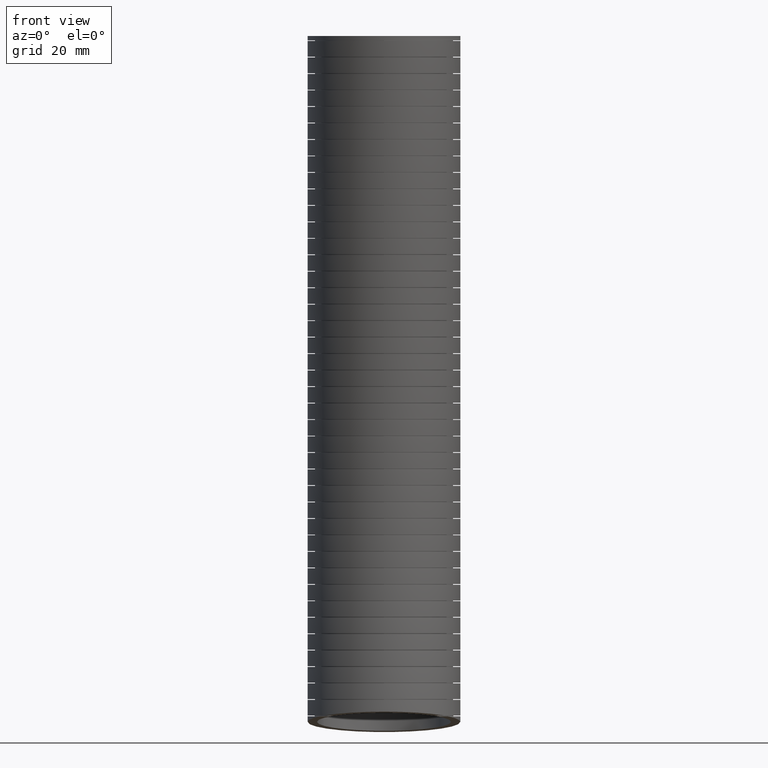
[diagram: clean part render]
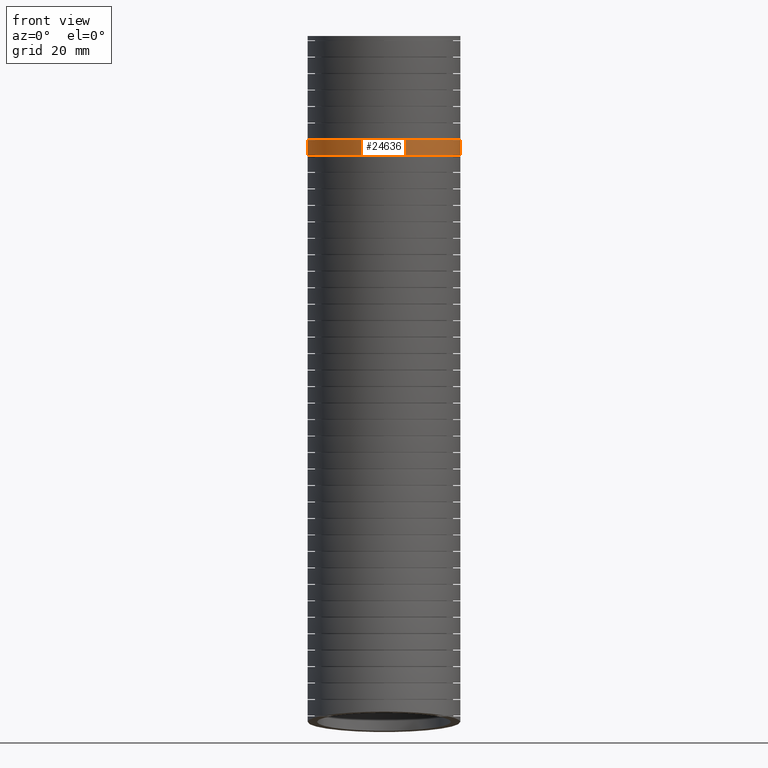
[diagram: same view with one face highlighted and labeled with its STEP entity id]
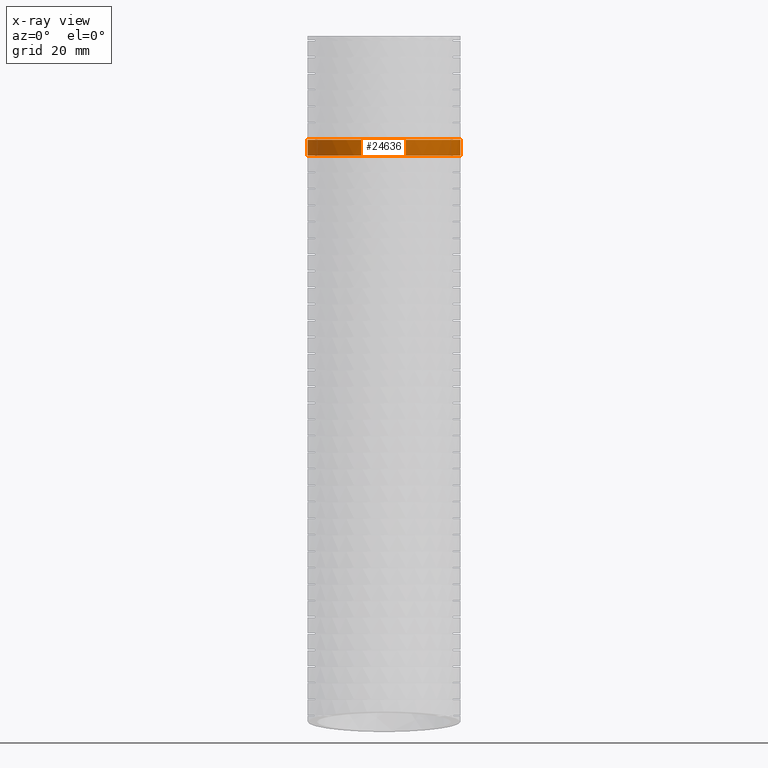
[diagram: x-ray of the same camera — body ghosted, the highlighted face saturated]
A machine part, front view. The second image highlights one B-rep face of the part: STEP entity #24636.
The next image is the same camera in x-ray: the body ghosted, the highlighted face saturated — about 0% of this face is hidden behind the body in this view.
In plain terms, the highlighted face is a freeform B-spline surface patch.
Its self-contained STEP definition (entity closure, byte-faithful):
#20815 = FACE_OUTER_BOUND ( 'NONE', #24637, .T. ) ;
#20819 = CARTESIAN_POINT ( 'NONE',  ( 1.064999999999999700, -2.140788144512650400, -9.284564527458751800 ) ) ;
#20820 = CARTESIAN_POINT ( 'NONE',  ( 1.064999999999999700, -2.124537751342253000, -9.104349485882636400 ) ) ;
#20821 = CARTESIAN_POINT ( 'NONE',  ( 1.064999999999999700, -2.004921696294905200, -7.777820822391721100 ) ) ;
#20822 = CARTESIAN_POINT ( 'NONE',  ( 1.064999999999999900, -1.920720332394860500, -4.747094541069063900 ) ) ;
#20823 = CARTESIAN_POINT ( 'NONE',  ( 1.065000000000000200, -2.051880588320306000, -1.771984048808268300 ) ) ;
#20824 = CARTESIAN_POINT ( 'NONE',  ( 1.064999999999999900, -2.129999999999999900, 0.0000000000000000000 ) ) ;
#20825 = CARTESIAN_POINT ( 'NONE',  ( 1.064999999999999700, -0.02999999999999993000, -9.569999999999996700 ) ) ;
#20826 = CARTESIAN_POINT ( 'NONE',  ( 1.064999999999999700, -0.01282253193203170200, -9.380021792021830500 ) ) ;
#20827 = CARTESIAN_POINT ( 'NONE',  ( 1.064999999999999700, 0.1136175452062334300, -7.981628316551387500 ) ) ;
#20828 = CARTESIAN_POINT ( 'NONE',  ( 1.064999999999999500, 0.2122813731536103700, -4.795410929656176400 ) ) ;
#20829 = CARTESIAN_POINT ( 'NONE',  ( 1.064999999999999900, 0.07923988111738790300, -1.790019474294677300 ) ) ;
#20830 = CARTESIAN_POINT ( 'NONE',  ( 1.064999999999999900, 0.0000000000000000000, 0.0000000000000000000 ) ) ;
#20832 =( BOUNDED_SURFACE ( )  B_SPLINE_SURFACE ( 3, 3, ( 
 ( #20830, #20829, #20828, #20827, #20826, #20825 ),
 ( #20824, #20823, #20822, #20821, #20820, #20819 ),
 ( #20864, #20863, #20862, #20861, #20860, #20859 ),
 ( #20858, #20857, #20856, #20855, #20854, #20853 ),
 ( #20852, #20851, #20850, #20849, #20848, #20847 ),
 ( #20846, #20845, #20844, #20843, #20842, #20841 ),
 ( #20840, #20839, #20838, #20837, #20836, #20835 ) ),
 .UNSPECIFIED., .F., .F., .F. ) 
 B_SPLINE_SURFACE_WITH_KNOTS ( ( 4, 3, 4 ),
 ( 4, 1, 1, 4 ),
 ( 0.0000000000000000000, 0.5000000000000000000, 1.000000000000000000 ),
 ( 0.0000000000000000000, 0.5600000000000001600, 0.9402239691641354200, 1.000000000000000000 ),
 .UNSPECIFIED. ) 
 GEOMETRIC_REPRESENTATION_ITEM ( )  RATIONAL_B_SPLINE_SURFACE ( (
 ( 1.000000000000000000, 1.000000000000000000, 1.000000000000000200, 1.000000000000000200, 1.000000000000000200, 1.000000000000000200),
 ( 0.3333333333333333100, 0.3333333333333333100, 0.3333333333333332600, 0.3333333333333334300, 0.3333333333333333700, 0.3333333333333333700),
 ( 0.3333333333333333100, 0.3333333333333333100, 0.3333333333333332600, 0.3333333333333334300, 0.3333333333333333700, 0.3333333333333333700),
 ( 1.000000000000000000, 1.000000000000000000, 1.000000000000000200, 1.000000000000000200, 1.000000000000000200, 1.000000000000000200),
 ( 0.3333333333333333100, 0.3333333333333333100, 0.3333333333333332600, 0.3333333333333334300, 0.3333333333333333700, 0.3333333333333333700),
 ( 0.3333333333333333100, 0.3333333333333333100, 0.3333333333333332600, 0.3333333333333334300, 0.3333333333333333700, 0.3333333333333333700),
 ( 1.000000000000000000, 1.000000000000000000, 1.000000000000000200, 1.000000000000000200, 1.000000000000000200, 1.000000000000000200) ) ) 
 REPRESENTATION_ITEM ( '' )  SURFACE ( )  );
#20835 = CARTESIAN_POINT ( 'NONE',  ( 1.064999999999999700, -0.02999999999999993000, -9.569999999999996700 ) ) ;
#20836 = CARTESIAN_POINT ( 'NONE',  ( 1.064999999999999700, -0.01282253193203170200, -9.380021792021830500 ) ) ;
#20837 = CARTESIAN_POINT ( 'NONE',  ( 1.064999999999999700, 0.1136175452062334300, -7.981628316551387500 ) ) ;
#20838 = CARTESIAN_POINT ( 'NONE',  ( 1.064999999999999500, 0.2122813731536103700, -4.795410929656176400 ) ) ;
#20839 = CARTESIAN_POINT ( 'NONE',  ( 1.064999999999999900, 0.07923988111738790300, -1.790019474294677300 ) ) ;
#20840 = CARTESIAN_POINT ( 'NONE',  ( 1.064999999999999900, 0.0000000000000000000, 0.0000000000000000000 ) ) ;
#20841 = CARTESIAN_POINT ( 'NONE',  ( 1.064999999999999700, 2.080788144512650400, -9.855435472541238100 ) ) ;
#20842 = CARTESIAN_POINT ( 'NONE',  ( 1.064999999999999700, 2.098892687478189700, -9.655694098161024600 ) ) ;
#20843 = CARTESIAN_POINT ( 'NONE',  ( 1.064999999999999700, 2.232156786707371500, -8.185435810711052100 ) ) ;
#20844 = CARTESIAN_POINT ( 'NONE',  ( 1.064999999999999900, 2.345283078702082900, -4.843727318243294300 ) ) ;
#20845 = CARTESIAN_POINT ( 'NONE',  ( 1.065000000000000200, 2.210360350555081500, -1.808054899781085700 ) ) ;
#20846 = CARTESIAN_POINT ( 'NONE',  ( 1.064999999999999900, 2.129999999999999900, 0.0000000000000000000 ) ) ;
#20847 = CARTESIAN_POINT ( 'NONE',  ( -1.064999999999999700, 2.080788144512650400, -9.855435472541238100 ) ) ;
#20848 = CARTESIAN_POINT ( 'NONE',  ( -1.064999999999999700, 2.098892687478189700, -9.655694098161024600 ) ) ;
#20849 = CARTESIAN_POINT ( 'NONE',  ( -1.064999999999999500, 2.232156786707371500, -8.185435810711052100 ) ) ;
#20850 = CARTESIAN_POINT ( 'NONE',  ( -1.064999999999999500, 2.345283078702082900, -4.843727318243294300 ) ) ;
#20851 = CARTESIAN_POINT ( 'NONE',  ( -1.064999999999999900, 2.210360350555081500, -1.808054899781085700 ) ) ;
#20852 = CARTESIAN_POINT ( 'NONE',  ( -1.064999999999999900, 2.129999999999999900, 0.0000000000000000000 ) ) ;
#20853 = CARTESIAN_POINT ( 'NONE',  ( -1.064999999999999700, -0.02999999999999980100, -9.569999999999996700 ) ) ;
#20854 = CARTESIAN_POINT ( 'NONE',  ( -1.064999999999999700, -0.01282253193203157000, -9.380021792021830500 ) ) ;
#20855 = CARTESIAN_POINT ( 'NONE',  ( -1.064999999999999700, 0.1136175452062335600, -7.981628316551387500 ) ) ;
#20856 = CARTESIAN_POINT ( 'NONE',  ( -1.064999999999999500, 0.2122813731536105100, -4.795410929656176400 ) ) ;
#20857 = CARTESIAN_POINT ( 'NONE',  ( -1.064999999999999900, 0.07923988111738802800, -1.790019474294677300 ) ) ;
#20858 = CARTESIAN_POINT ( 'NONE',  ( -1.064999999999999900, 1.304248841091931100E-016, 0.0000000000000000000 ) ) ;
#20859 = CARTESIAN_POINT ( 'NONE',  ( -1.064999999999999900, -2.140788144512650400, -9.284564527458751800 ) ) ;
#20860 = CARTESIAN_POINT ( 'NONE',  ( -1.064999999999999900, -2.124537751342253000, -9.104349485882636400 ) ) ;
#20861 = CARTESIAN_POINT ( 'NONE',  ( -1.064999999999999700, -2.004921696294905200, -7.777820822391721100 ) ) ;
#20862 = CARTESIAN_POINT ( 'NONE',  ( -1.065000000000000400, -1.920720332394860500, -4.747094541069063900 ) ) ;
#20863 = CARTESIAN_POINT ( 'NONE',  ( -1.065000000000000200, -2.051880588320306000, -1.771984048808268300 ) ) ;
#20864 = CARTESIAN_POINT ( 'NONE',  ( -1.065000000000000200, -2.129999999999999900, 0.0000000000000000000 ) ) ;
#20865 = CARTESIAN_POINT ( 'NONE',  ( -0.4866974467777144800, -0.8849604235132453300, -1.448716968830779700 ) ) ;
#20866 = CARTESIAN_POINT ( 'NONE',  ( -0.4709763194039115500, -0.8928746045501345700, -1.448716968830779100 ) ) ;
#20867 = CARTESIAN_POINT ( 'NONE',  ( -0.4392283636170776800, -0.9078816050388302000, -1.448716968830779100 ) ) ;
#20868 = CARTESIAN_POINT ( 'NONE',  ( -0.4232309507974467100, -0.9149634816547710400, -1.448716968830778600 ) ) ;
#20869 = CARTESIAN_POINT ( 'NONE',  ( -0.3426387189472879800, -0.9483057591654189300, -1.448716968830778600 ) ) ;
#20870 = CARTESIAN_POINT ( 'NONE',  ( -0.2762456248258989800, -0.9684236905667932300, -1.448716968830779100 ) ) ;
#20871 = CARTESIAN_POINT ( 'NONE',  ( -0.1908685911766998000, -0.9854222511280196200, -1.448716968830779300 ) ) ;
#20872 = CARTESIAN_POINT ( 'NONE',  ( -0.1736728282987730600, -0.9884108559676826300, -1.448716968830779300 ) ) ;
#20873 = CARTESIAN_POINT ( 'NONE',  ( -0.1390365297507731300, -0.9935519814370898900, -1.448716968830779300 ) ) ;
#20874 = CARTESIAN_POINT ( 'NONE',  ( -0.1215471408210705300, -0.9957083186212556400, -1.448716968830779700 ) ) ;
#20875 = CARTESIAN_POINT ( 'NONE',  ( -0.06917626463293052900, -1.000851930954310500, -1.448716968830780200 ) ) ;
#20876 = CARTESIAN_POINT ( 'NONE',  ( -0.03435424796706621600, -1.002534485866542400, -1.448716968830779500 ) ) ;
#20877 = CARTESIAN_POINT ( 'NONE',  ( 0.06984424786924604800, -1.002497442705285100, -1.448716968830779700 ) ) ;
#20878 = CARTESIAN_POINT ( 'NONE',  ( 0.1389557230359815500, -0.9957416009635421400, -1.448716968830779500 ) ) ;
#20879 = CARTESIAN_POINT ( 'NONE',  ( 0.2248902165723417600, -0.9786526367133016000, -1.448716968830779300 ) ) ;
#20880 = CARTESIAN_POINT ( 'NONE',  ( 0.2420904840794972100, -0.9747877499021234700, -1.448716968830779300 ) ) ;
#20881 = CARTESIAN_POINT ( 'NONE',  ( 0.2760865639023241100, -0.9662605040764208300, -1.448716968830779500 ) ) ;
#20882 = CARTESIAN_POINT ( 'NONE',  ( 0.2929185415983316900, -0.9615928437396089600, -1.448716968830779300 ) ) ;
#20883 = CARTESIAN_POINT ( 'NONE',  ( 0.3429250532910385600, -0.9463990767378368500, -1.448716968830779300 ) ) ;
#20884 = CARTESIAN_POINT ( 'NONE',  ( 0.4082975871791459400, -0.9229709085686541600, -1.448716968830778200 ) ) ;
#20885 = CARTESIAN_POINT ( 'NONE',  ( 0.4710995811338618600, -0.8932884920724852900, -1.448716968830780800 ) ) ;
#20886 = CARTESIAN_POINT ( 'NONE',  ( 0.5172223497049242000, -0.8686453896974454200, -1.448716968830780600 ) ) ;
#20887 = CARTESIAN_POINT ( 'NONE',  ( 0.5324331945968233700, -0.8600334346246457700, -1.448716968830780200 ) ) ;
#20888 = CARTESIAN_POINT ( 'NONE',  ( 0.5625219215293692000, -0.8419994097135290500, -1.448716968830779700 ) ) ;
#20889 = CARTESIAN_POINT ( 'NONE',  ( 0.5774086395894562100, -0.8325680310105108000, -1.448716968830778600 ) ) ;
#20890 = CARTESIAN_POINT ( 'NONE',  ( 0.6501826496351675900, -0.7839047547505115800, -1.448716968830779100 ) ) ;
#20891 = CARTESIAN_POINT ( 'NONE',  ( 0.7038090052775680700, -0.7398145719426328900, -1.448716968830779100 ) ) ;
#20892 = CARTESIAN_POINT ( 'NONE',  ( 0.7775202584698516200, -0.6661208188406900800, -1.448716968830779300 ) ) ;
#20893 = CARTESIAN_POINT ( 'NONE',  ( 0.8009612749217992500, -0.6402874770227114900, -1.448716968830779700 ) ) ;
#20894 = CARTESIAN_POINT ( 'NONE',  ( 0.8343741266150267500, -0.5995730235608827100, -1.448716968830779700 ) ) ;
#20895 = CARTESIAN_POINT ( 'NONE',  ( 0.8452004085714034400, -0.5856927235699932500, -1.448716968830780400 ) ) ;
#20896 = CARTESIAN_POINT ( 'NONE',  ( 0.8660331218656003300, -0.5575822724024470700, -1.448716968830780200 ) ) ;
#20897 = CARTESIAN_POINT ( 'NONE',  ( 0.8760694248878119200, -0.5433164249532850300, -1.448716968830779700 ) ) ;
#20898 = CARTESIAN_POINT ( 'NONE',  ( 0.9243805934500480800, -0.4709506606143452600, -1.448716968830779700 ) ) ;
#20899 = CARTESIAN_POINT ( 'NONE',  ( 0.9570978399041209000, -0.4097707675781662200, -1.448716968830780400 ) ) ;
#20900 = CARTESIAN_POINT ( 'NONE',  ( 0.9971961147974779400, -0.3130256360201264000, -1.448716968830780200 ) ) ;
#20901 = CARTESIAN_POINT ( 'NONE',  ( 1.009097036959879700, -0.2797670111576394100, -1.448716968830779700 ) ) ;
#20902 = CARTESIAN_POINT ( 'NONE',  ( 1.029372387275501400, -0.2128502042484471900, -1.448716968830780200 ) ) ;
#20903 = CARTESIAN_POINT ( 'NONE',  ( 1.037804036996587100, -0.1791012644081997600, -1.448716968830779300 ) ) ;
#20904 = CARTESIAN_POINT ( 'NONE',  ( 1.058095140754703200, -0.07700228927062285900, -1.448716968830778400 ) ) ;
#20905 = CARTESIAN_POINT ( 'NONE',  ( 1.064999999999999500, -0.007808485743248075500, -1.448716968830850100 ) ) ;
#20906 = CARTESIAN_POINT ( 'NONE',  ( 1.064999999999999700, 0.06256121634072178700, -1.448716968830850500 ) ) ;
#20907 = B_SPLINE_CURVE_WITH_KNOTS ( 'NONE', 3,
 ( #20906, #20905, #20904, #20903, #20902, #20901, #20900, #20899, #20898, #20897, #20896, #20895, #20894, #20893, #20892, #20891, #20890, #20889, #20888, #20887, #20886, #20885, #20884, #20883, #20882, #20881, #20880, #20879, #20878, #20877, #20876, #20875, #20874, #20873, #20872, #20871, #20870, #20869, #20868, #20867, #20866, #20865, #20939, #20938, #20937, #20936, #20935, #20934, #20933, #20932, #20931, #20930, #20929, #20928, #20927, #20926, #20925, #20924, #20923, #20922, #20921 ),
 .UNSPECIFIED., .F., .F.,
 ( 4, 2, 2, 2, 2, 2, 2, 2, 2, 2, 2, 1, 2, 2, 2, 2, 2, 2, 2, 2, 2, 2, 2, 2, 2, 2, 2, 2, 2, 2, 4 ),
 ( 0.0000000000000000000, 0.005286065553885886300, 0.007929098330828830400, 0.01057213110777177300, 0.01585819666165766800, 0.01717971305012914300, 0.01850122943860061900, 0.02114426221554355900, 0.02643032776942944700, 0.02775184415790092300, 0.02907336054637239800, 0.03171639332331533500, 0.03435942610025828600, 0.03568094248872974400, 0.03700245887720121600, 0.04228852443108708400, 0.04493155720803002100, 0.04625307359650148600, 0.04757458998497295800, 0.05286065553885882500, 0.05418217192733029700, 0.05550368831580177600, 0.05814672109274469900, 0.06343278664663056000, 0.06607581942357349000, 0.06871885220051640600, 0.07136188497745933600, 0.07400491775440226600, 0.07929098330828809900, 0.08193401608523102900, 0.08457704886217395900 ),
 .UNSPECIFIED. ) ;
#20908 = CARTESIAN_POINT ( 'NONE',  ( 1.064999999999999700, 0.06256121634072178700, -1.448716968830850500 ) ) ;
#20909 = CARTESIAN_POINT ( 'NONE',  ( -1.064999999999999900, 0.06256121634071608300, -1.448716968830779300 ) ) ;
#20915 = CARTESIAN_POINT ( 'NONE',  ( -1.064999999999999900, 0.07146307543041097200, -1.668528585986035700 ) ) ;
#20916 = CARTESIAN_POINT ( 'NONE',  ( -1.064999999999999900, 0.06853567426892075200, -1.595259748533024900 ) ) ;
#20917 = CARTESIAN_POINT ( 'NONE',  ( -1.064999999999999900, 0.06556655577894984800, -1.521989131318481700 ) ) ;
#20918 = CARTESIAN_POINT ( 'NONE',  ( -1.064999999999999900, 0.06256121634071608300, -1.448716968830779300 ) ) ;
#20919 = B_SPLINE_CURVE_WITH_KNOTS ( 'NONE', 3,
 ( #20918, #20917, #20916, #20915 ),
 .UNSPECIFIED., .F., .F.,
 ( 4, 4 ),
 ( 0.1510819843809032300, 0.1740080554250508500 ),
 .UNSPECIFIED. ) ;
#20920 = CARTESIAN_POINT ( 'NONE',  ( -1.064999999999999900, 0.07146307543041097200, -1.668528585986035700 ) ) ;
#20921 = CARTESIAN_POINT ( 'NONE',  ( -1.064999999999999900, 0.06256121634071608300, -1.448716968830779300 ) ) ;
#20922 = CARTESIAN_POINT ( 'NONE',  ( -1.065000000000000200, 0.02780590215527571300, -1.448716968830779500 ) ) ;
#20923 = CARTESIAN_POINT ( 'NONE',  ( -1.063303330628744300, -0.007057135749218001800, -1.448716968830779700 ) ) ;
#20924 = CARTESIAN_POINT ( 'NONE',  ( -1.056401430946682500, -0.07700597460169002200, -1.448716968830779700 ) ) ;
#20925 = CARTESIAN_POINT ( 'NONE',  ( -1.051231405868298800, -0.1116581143685618200, -1.448716968830779500 ) ) ;
#20926 = CARTESIAN_POINT ( 'NONE',  ( -1.030818276207375200, -0.2140088578585111200, -1.448716968830779300 ) ) ;
#20927 = CARTESIAN_POINT ( 'NONE',  ( -1.010689809930849400, -0.2804105605713791400, -1.448716968830777900 ) ) ;
#20928 = CARTESIAN_POINT ( 'NONE',  ( -0.9705968081267752900, -0.3772309977406327900, -1.448716968830778200 ) ) ;
#20929 = CARTESIAN_POINT ( 'NONE',  ( -0.9554859400461377400, -0.4091663952015960900, -1.448716968830779100 ) ) ;
#20930 = CARTESIAN_POINT ( 'NONE',  ( -0.9225200609882232600, -0.4707742912686641600, -1.448716968830779100 ) ) ;
#20931 = CARTESIAN_POINT ( 'NONE',  ( -0.9046227695293097600, -0.5005869987062947500, -1.448716968830780600 ) ) ;
#20932 = CARTESIAN_POINT ( 'NONE',  ( -0.8660579764968447900, -0.5582709274021729900, -1.448716968830779500 ) ) ;
#20933 = CARTESIAN_POINT ( 'NONE',  ( -0.8453903882540808600, -0.5861420879187869700, -1.448716968830778600 ) ) ;
#20934 = CARTESIAN_POINT ( 'NONE',  ( -0.8012627969380635700, -0.6399273607223988600, -1.448716968830779100 ) ) ;
#20935 = CARTESIAN_POINT ( 'NONE',  ( -0.7777593753716077800, -0.6658851332390475200, -1.448716968830779700 ) ) ;
#20936 = CARTESIAN_POINT ( 'NONE',  ( -0.7031772077421722900, -0.7404394599863425300, -1.448716968830779700 ) ) ;
#20937 = CARTESIAN_POINT ( 'NONE',  ( -0.6493845820180950100, -0.7844656378660714900, -1.448716968830779100 ) ) ;
#20938 = CARTESIAN_POINT ( 'NONE',  ( -0.5628187777173677700, -0.8423104162887763400, -1.448716968830779500 ) ) ;
#20939 = CARTESIAN_POINT ( 'NONE',  ( -0.5329768050551471100, -0.8602161840431745700, -1.448716968830779700 ) ) ;
#21686 = CARTESIAN_POINT ( 'NONE',  ( -0.1735442050620949200, -0.9795264662024308900, -1.668528585986034600 ) ) ;
#21687 = CARTESIAN_POINT ( 'NONE',  ( -0.1908875625240724100, -0.9765138035290154000, -1.668528585986035700 ) ) ;
#21688 = CARTESIAN_POINT ( 'NONE',  ( -0.2766678217938537400, -0.9594265336435849900, -1.668528585986036400 ) ) ;
#21689 = CARTESIAN_POINT ( 'NONE',  ( -0.3430660291232053300, -0.9392357953651459000, -1.668528585986035300 ) ) ;
#21690 = CARTESIAN_POINT ( 'NONE',  ( -0.4393915051535142200, -0.8993650603745527700, -1.668528585986035700 ) ) ;
#21691 = CARTESIAN_POINT ( 'NONE',  ( -0.4709508153565976100, -0.8844660230185168400, -1.668528585986035900 ) ) ;
#21692 = CARTESIAN_POINT ( 'NONE',  ( -0.5329337684342576600, -0.8513410847845337400, -1.668528585986035900 ) ) ;
#21693 = CARTESIAN_POINT ( 'NONE',  ( -0.5629688389601168500, -0.8333143706330730100, -1.668528585986035000 ) ) ;
#21694 = CARTESIAN_POINT ( 'NONE',  ( -0.6497177789225216900, -0.7753175572180275300, -1.668528585986035000 ) ) ;
#21695 = CARTESIAN_POINT ( 'NONE',  ( -0.7033649799125830700, -0.7313303096557071100, -1.668528585986035900 ) ) ;
#21696 = CARTESIAN_POINT ( 'NONE',  ( -0.7774804017617609200, -0.6572671509664306200, -1.668528585986035900 ) ) ;
#21697 = CARTESIAN_POINT ( 'NONE',  ( -0.8012053874299617200, -0.6310952913012221100, -1.668528585986034200 ) ) ;
#21698 = CARTESIAN_POINT ( 'NONE',  ( -0.8455155959071790600, -0.5770821442606517400, -1.668528585986034800 ) ) ;
#21699 = CARTESIAN_POINT ( 'NONE',  ( -0.8662142626518208900, -0.5491480837508444500, -1.668528585986035900 ) ) ;
#21700 = CARTESIAN_POINT ( 'NONE',  ( -0.9047590809839183300, -0.4914634270359698500, -1.668528585986035900 ) ) ;
#21701 = CARTESIAN_POINT ( 'NONE',  ( -0.9226051426905554900, -0.4617127735930936500, -1.668528585986035900 ) ) ;
#21702 = CARTESIAN_POINT ( 'NONE',  ( -0.9554220353146636300, -0.4003804652672724500, -1.668528585986035700 ) ) ;
#21703 = CARTESIAN_POINT ( 'NONE',  ( -0.9704162995974177100, -0.3687427445623274700, -1.668528585986035700 ) ) ;
#21704 = CARTESIAN_POINT ( 'NONE',  ( -1.010778946883808200, -0.2713328277560433400, -1.668528585986035700 ) ) ;
#21705 = CARTESIAN_POINT ( 'NONE',  ( -1.030887393606728200, -0.2048030477161976700, -1.668528585986036400 ) ) ;
#21706 = CARTESIAN_POINT ( 'NONE',  ( -1.051235379699837500, -0.1027137059021165500, -1.668528585986035900 ) ) ;
#21707 = CARTESIAN_POINT ( 'NONE',  ( -1.056370192437122900, -0.06829865836136232700, -1.668528585986035700 ) ) ;
#21708 = CARTESIAN_POINT ( 'NONE',  ( -1.061540153504135600, -0.01608404547235375200, -1.668528585986035700 ) ) ;
#21709 = CARTESIAN_POINT ( 'NONE',  ( -1.062842491604727400, 0.001464964961446740600, -1.668528585986035000 ) ) ;
#21710 = CARTESIAN_POINT ( 'NONE',  ( -1.064571901844986800, 0.03653436041163659500, -1.668528585986035300 ) ) ;
#21711 = CARTESIAN_POINT ( 'NONE',  ( -1.064999999999999900, 0.05402185804006988400, -1.668528585986035700 ) ) ;
#21712 = CARTESIAN_POINT ( 'NONE',  ( -1.064999999999999900, 0.07146307543041097200, -1.668528585986035700 ) ) ;
#21713 = B_SPLINE_CURVE_WITH_KNOTS ( 'NONE', 3,
 ( #21712, #21711, #21710, #21709, #21708, #21707, #21706, #21705, #21704, #21703, #21702, #21701, #21700, #21699, #21698, #21697, #21696, #21695, #21694, #21693, #21692, #21691, #21690, #21689, #21688, #21687, #21686, #21767, #21766, #21765, #21764, #21763, #21762, #21761, #21760, #21759, #21758, #21757, #21756, #21755, #21754, #21753, #21752, #21751, #21750, #21749, #21748, #21747, #21746, #21745, #21744, #21743, #21742, #21741, #21740, #21739, #21738, #21737, #21736, #21735, #21734, #21733, #21732, #21731, #21730, #21729 ),
 .UNSPECIFIED., .F., .F.,
 ( 4, 2, 2, 2, 2, 2, 2, 2, 2, 2, 2, 2, 2, 2, 2, 2, 2, 2, 2, 2, 2, 2, 2, 2, 2, 2, 2, 2, 2, 2, 2, 2, 4 ),
 ( 0.08548096649449009300, 0.08681668229725038300, 0.08815239810001068700, 0.09082382970553126700, 0.09616669291657245500, 0.09883812452209303500, 0.1015095561276136300, 0.1041809877331342200, 0.1068524193386548000, 0.1121952825496959900, 0.1148667141552165800, 0.1175381457607371800, 0.1228810089717783700, 0.1242167247745386600, 0.1255524405772989700, 0.1282238721828195500, 0.1308953037883401300, 0.1322310195911004500, 0.1335667353938607400, 0.1389095986049019300, 0.1415810302104225100, 0.1429167460131828000, 0.1442524618159430900, 0.1495953250269842500, 0.1509310408297445400, 0.1522667566325048300, 0.1549381882380253800, 0.1602810514490665100, 0.1616167672518267800, 0.1629524830545870700, 0.1656239146601076200, 0.1682953462656282000, 0.1709667778711487500 ),
 .UNSPECIFIED. ) ;
#21714 = CARTESIAN_POINT ( 'NONE',  ( 1.064999999999999900, 0.07146307543041773000, -1.668528585986121900 ) ) ;
#21725 = CARTESIAN_POINT ( 'NONE',  ( 1.064999999999999700, 0.06256121634072178700, -1.448716968830850500 ) ) ;
#21727 = B_SPLINE_CURVE_WITH_KNOTS ( 'NONE', 3,
 ( #21725, #21785, #21784, #21783 ),
 .UNSPECIFIED., .F., .F.,
 ( 4, 4 ),
 ( 0.1510819843809106900, 0.1740080554250599000 ),
 .UNSPECIFIED. ) ;
#21729 = CARTESIAN_POINT ( 'NONE',  ( 1.064999999999999900, 0.07146307543041773000, -1.668528585986121900 ) ) ;
#21730 = CARTESIAN_POINT ( 'NONE',  ( 1.064999999999999700, 0.03628342442918489800, -1.668528585986121900 ) ) ;
#21731 = CARTESIAN_POINT ( 'NONE',  ( 1.063245267185953400, 0.001081362127163481300, -1.668528585986035300 ) ) ;
#21732 = CARTESIAN_POINT ( 'NONE',  ( 1.056355361446540400, -0.06839259528909900900, -1.668528585986034800 ) ) ;
#21733 = CARTESIAN_POINT ( 'NONE',  ( 1.051226341528844800, -0.1027654237175609800, -1.668528585986035700 ) ) ;
#21734 = CARTESIAN_POINT ( 'NONE',  ( 1.037664131430469300, -0.1707966110842220300, -1.668528585986035300 ) ) ;
#21735 = CARTESIAN_POINT ( 'NONE',  ( 1.029230865164624000, -0.2044549535703246400, -1.668528585986035300 ) ) ;
#21736 = CARTESIAN_POINT ( 'NONE',  ( 1.014078783410518500, -0.2544014137793299500, -1.668528585986035000 ) ) ;
#21737 = CARTESIAN_POINT ( 'NONE',  ( 1.008610321974511300, -0.2709598988717250000, -1.668528585986034200 ) ) ;
#21738 = CARTESIAN_POINT ( 'NONE',  ( 0.9968246329092329500, -0.3038933380937662900, -1.668528585986034600 ) ) ;
#21739 = CARTESIAN_POINT ( 'NONE',  ( 0.9904898834125133200, -0.3203095741270760000, -1.668528585986035000 ) ) ;
#21740 = CARTESIAN_POINT ( 'NONE',  ( 0.9568654772275224700, -0.4013983100513627300, -1.668528585986035000 ) ) ;
#21741 = CARTESIAN_POINT ( 'NONE',  ( 0.9240303567259143800, -0.4626276982503435000, -1.668528585986034800 ) ) ;
#21742 = CARTESIAN_POINT ( 'NONE',  ( 0.8661799824002985900, -0.5491969323419300100, -1.668528585986034200 ) ) ;
#21743 = CARTESIAN_POINT ( 'NONE',  ( 0.8454530882329661700, -0.5771677682847035100, -1.668528585986035900 ) ) ;
#21744 = CARTESIAN_POINT ( 'NONE',  ( 0.8121406377484499100, -0.6177607160044611400, -1.668528585986035300 ) ) ;
#21745 = CARTESIAN_POINT ( 'NONE',  ( 0.8006316802196249400, -0.6310999243925298200, -1.668528585986035300 ) ) ;
#21746 = CARTESIAN_POINT ( 'NONE',  ( 0.7770649942201028900, -0.6570843529409454700, -1.668528585986035000 ) ) ;
#21747 = CARTESIAN_POINT ( 'NONE',  ( 0.7650051796088204200, -0.6697368733645899800, -1.668528585986035300 ) ) ;
#21748 = CARTESIAN_POINT ( 'NONE',  ( 0.7033494439787988400, -0.7313325776374417500, -1.668528585986035300 ) ) ;
#21749 = CARTESIAN_POINT ( 'NONE',  ( 0.6497221492721905200, -0.7753225120605452500, -1.668528585986037500 ) ) ;
#21750 = CARTESIAN_POINT ( 'NONE',  ( 0.5773218072646632000, -0.8237165834673556600, -1.668528585986036600 ) ) ;
#21751 = CARTESIAN_POINT ( 'NONE',  ( 0.5625710178340589400, -0.8330627694969499100, -1.668528585986035000 ) ) ;
#21752 = CARTESIAN_POINT ( 'NONE',  ( 0.5325183887090099200, -0.8510780796872944300, -1.668528585986035700 ) ) ;
#21753 = CARTESIAN_POINT ( 'NONE',  ( 0.5171808788569436400, -0.8597643310413741700, -1.668528585986035900 ) ) ;
#21754 = CARTESIAN_POINT ( 'NONE',  ( 0.4708102377696687400, -0.8845318829660525600, -1.668528585986036200 ) ) ;
#21755 = CARTESIAN_POINT ( 'NONE',  ( 0.4393053816638800600, -0.8994028868634665900, -1.668528585986035000 ) ) ;
#21756 = CARTESIAN_POINT ( 'NONE',  ( 0.3430669696180895800, -0.9392310432010617700, -1.668528585986035700 ) ) ;
#21757 = CARTESIAN_POINT ( 'NONE',  ( 0.2766261079192948200, -0.9594492445592615000, -1.668528585986034800 ) ) ;
#21758 = CARTESIAN_POINT ( 'NONE',  ( 0.1906346983365936300, -0.9765605456104791100, -1.668528585986034800 ) ) ;
#21759 = CARTESIAN_POINT ( 'NONE',  ( 0.1732722284315049700, -0.9795706072515750800, -1.668528585986035700 ) ) ;
#21760 = CARTESIAN_POINT ( 'NONE',  ( 0.1386338275395279400, -0.9846985236563976500, -1.668528585986035300 ) ) ;
#21761 = CARTESIAN_POINT ( 'NONE',  ( 0.1213109565961893000, -0.9868268404389120000, -1.668528585986035700 ) ) ;
#21762 = CARTESIAN_POINT ( 'NONE',  ( 0.06933151665203775300, -0.9919267498433727000, -1.668528585986035000 ) ) ;
#21763 = CARTESIAN_POINT ( 'NONE',  ( 0.03466414603746106200, -0.9936163280927544600, -1.668528585986035000 ) ) ;
#21764 = CARTESIAN_POINT ( 'NONE',  ( -0.03469907586376004500, -0.9936151905230777800, -1.668528585986035300 ) ) ;
#21765 = CARTESIAN_POINT ( 'NONE',  ( -0.06939492680780366700, -0.9919245153664123500, -1.668528585986035300 ) ) ;
#21766 = CARTESIAN_POINT ( 'NONE',  ( -0.1214604269569120600, -0.9868101714118835400, -1.668528585986035700 ) ) ;
#21767 = CARTESIAN_POINT ( 'NONE',  ( -0.1388192207317610100, -0.9846749043160931700, -1.668528585986034200 ) ) ;
#21783 = CARTESIAN_POINT ( 'NONE',  ( 1.064999999999999900, 0.07146307543041773000, -1.668528585986121900 ) ) ;
#21784 = CARTESIAN_POINT ( 'NONE',  ( 1.064999999999999900, 0.06853567426892393000, -1.595259748533106800 ) ) ;
#21785 = CARTESIAN_POINT ( 'NONE',  ( 1.064999999999999900, 0.06556655577895284500, -1.521989131318558700 ) ) ;
#24636 = ADVANCED_FACE ( 'NONE', ( #20815 ), #20832, .T. ) ;
#24637 = EDGE_LOOP ( 'NONE', ( #24638, #24642, #24645, #24705 ) ) ;
#24638 = ORIENTED_EDGE ( 'NONE', *, *, #24639, .T. ) ;
#24639 = EDGE_CURVE ( 'NONE', #24640, #24641, #20907, .T. ) ;
#24640 = VERTEX_POINT ( 'NONE', #20908 ) ;
#24641 = VERTEX_POINT ( 'NONE', #20909 ) ;
#24642 = ORIENTED_EDGE ( 'NONE', *, *, #24643, .T. ) ;
#24643 = EDGE_CURVE ( 'NONE', #24641, #24644, #20919, .T. ) ;
#24644 = VERTEX_POINT ( 'NONE', #20920 ) ;
#24645 = ORIENTED_EDGE ( 'NONE', *, *, #24703, .T. ) ;
#24703 = EDGE_CURVE ( 'NONE', #24644, #24704, #21713, .T. ) ;
#24704 = VERTEX_POINT ( 'NONE', #21714 ) ;
#24705 = ORIENTED_EDGE ( 'NONE', *, *, #24706, .F. ) ;
#24706 = EDGE_CURVE ( 'NONE', #24640, #24704, #21727, .T. ) ;